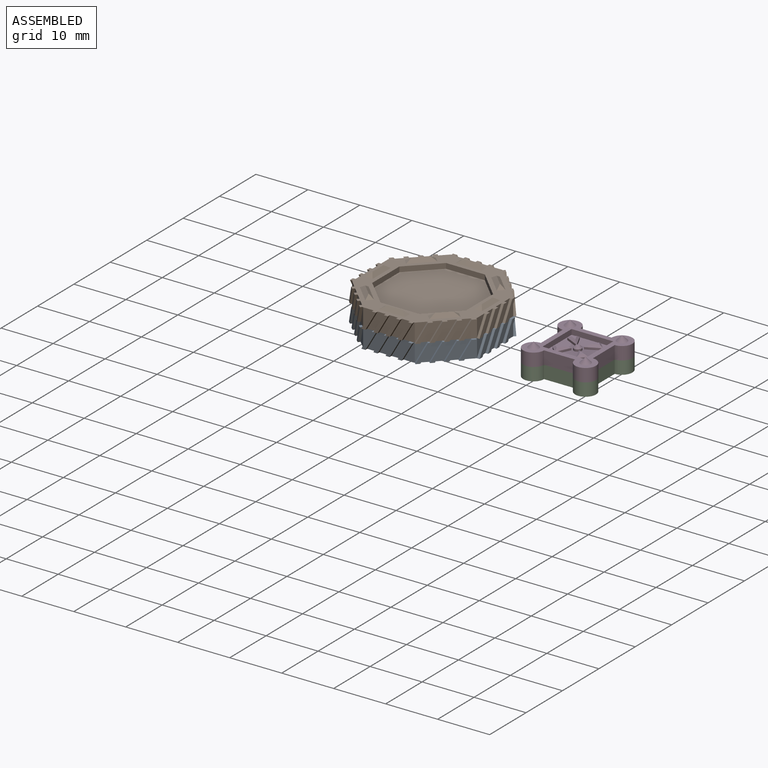
[diagram: assembled view]
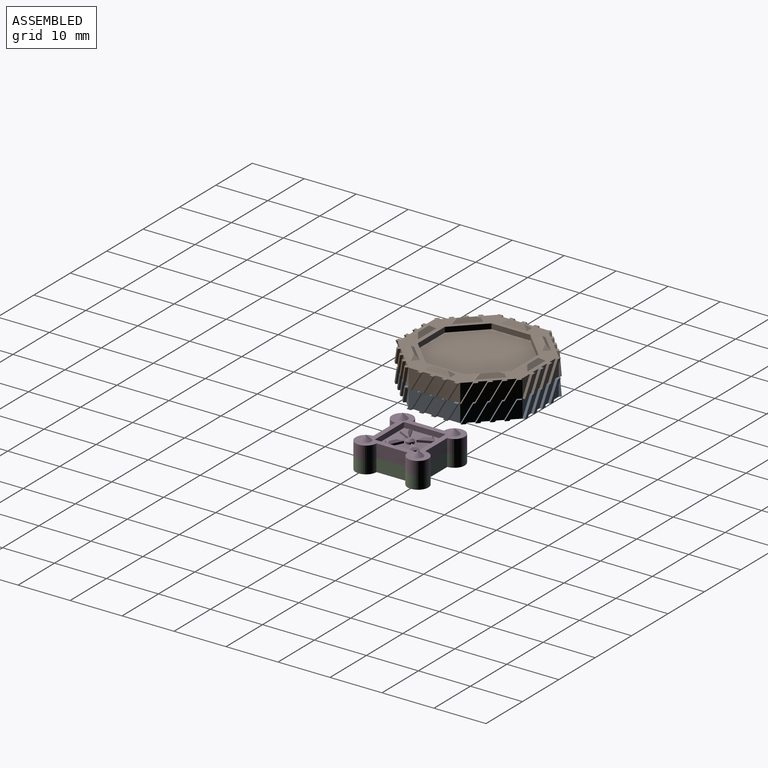
[diagram: assembled view, second angle]
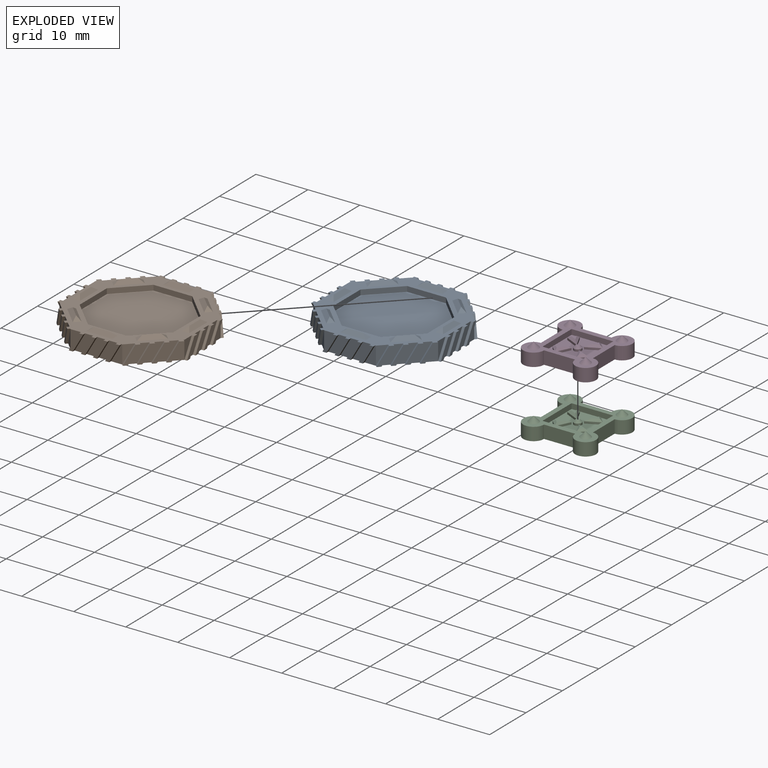
[diagram: exploded view]
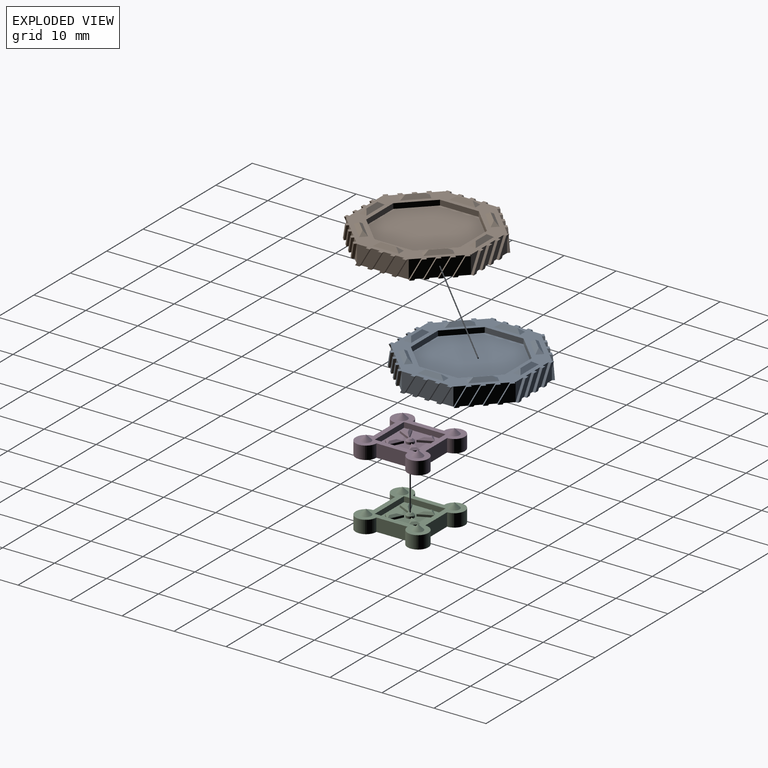
[diagram: exploded view, second angle]
ASSEMBLY  parts=4 mates=2
PART A: 211 faces, bbox 25x25x4.2 mm
  f0: plane 5x0.71mm, normal (0,-0.71,0.71), area 4mm2, adj f1,f2,f3,f4
  f1: plane 5.01x0.71mm, normal (0,0.71,0.71), area 4mm2, adj f0,f2,f3,f4
  f2: plane 1.41x1mm, normal (-0.58,0,0.82), area 0.8mm2, adj f0,f1,f4
  f3: plane 1.41x1mm, normal (0.58,0,0.82), area 0.8mm2, adj f0,f1,f4
  f4: plane 25.03x25.03mm, normal (0,0,1), area 165.8mm2, adj f0,f1,f2,f3,f5,f6,f7,f8
  f5: plane 3.54x3.54mm, normal (0.5,-0.5,0.71), area 4mm2, adj f4,f6,f7,f8
  f6: plane 3.54x3.54mm, normal (-0.5,0.5,0.71), area 4mm2, adj f4,f5,f7,f8
  f7: plane 1.2x1.2mm, normal (-0.41,-0.41,0.82), area 0.8mm2, adj f4,f5,f6
  f8: plane 1.2x1.2mm, normal (0.41,0.41,0.82), area 0.8mm2, adj f4,f5,f6
  f9: plane 5x0.71mm, normal (0.71,0,0.71), area 4mm2, adj f4,f10,f11,f12
  f10: plane 5.01x0.71mm, normal (-0.71,0,0.71), area 4mm2, adj f4,f9,f11,f12
  f11: plane 1.41x1mm, normal (0,-0.58,0.82), area 0.8mm2, adj f4,f9,f10
  f12: plane 1.41x1mm, normal (0,0.58,0.82), area 0.8mm2, adj f4,f9,f10
  f13: plane 3.54x3.54mm, normal (0.5,0.5,0.71), area 4mm2, adj f4,f14,f15,f16
  f14: plane 3.54x3.54mm, normal (-0.5,-0.5,0.71), area 4mm2, adj f4,f13,f15,f16
  f15: plane 1.2x1.2mm, normal (0.41,-0.41,0.82), area 0.8mm2, adj f4,f13,f14
  f16: plane 1.2x1.2mm, normal (-0.41,0.41,0.82), area 0.8mm2, adj f4,f13,f14
  f17: plane 5x0.71mm, normal (0,0.71,0.71), area 4mm2, adj f4,f18,f19,f20
  f18: plane 5.01x0.71mm, normal (0,-0.71,0.71), area 4mm2, adj f4,f17,f19,f20
  f19: plane 1.41x1mm, normal (0.58,0,0.82), area 0.8mm2, adj f4,f17,f18
  f20: plane 1.41x1mm, normal (-0.58,0,0.82), area 0.8mm2, adj f4,f17,f18
  f21: plane 3.54x3.54mm, normal (-0.5,0.5,0.71), area 4mm2, adj f4,f22,f23,f24
  f22: plane 3.54x3.54mm, normal (0.5,-0.5,0.71), area 4mm2, adj f4,f21,f23,f24
  f23: plane 1.2x1.2mm, normal (0.41,0.41,0.82), area 0.8mm2, adj f4,f21,f22
  f24: plane 1.2x1.2mm, normal (-0.41,-0.41,0.82), area 0.8mm2, adj f4,f21,f22
  f25: plane 5x0.71mm, normal (-0.71,0,0.71), area 4mm2, adj f4,f26,f27,f28
  f26: plane 5.01x0.71mm, normal (0.71,0,0.71), area 4mm2, adj f4,f25,f27,f28
  f27: plane 1.41x1mm, normal (0,0.58,0.82), area 0.8mm2, adj f4,f25,f26
  f28: plane 1.41x1mm, normal (0,-0.58,0.82), area 0.8mm2, adj f4,f25,f26
  f29: plane 3.54x3.54mm, normal (-0.5,-0.5,0.71), area 4mm2, adj f4,f30,f31,f32
  f30: plane 3.54x3.54mm, normal (0.5,0.5,0.71), area 4mm2, adj f4,f29,f31,f32
  f31: plane 1.2x1.2mm, normal (-0.41,0.41,0.82), area 0.8mm2, adj f4,f29,f30
  f32: plane 1.2x1.2mm, normal (0.41,-0.41,0.82), area 0.8mm2, adj f4,f29,f30
  f33: plane 25.03x25.03mm, normal (0,0,-1), area 423.1mm2, adj f34,f35,f36,f38,f39,f40,f41,f42
  f34: plane 3.5x2.02mm, normal (-0.87,0,-0.5), area 2mm2, adj f4,f33,f36,f38
  f35: plane 3.5x2.02mm, normal (0.87,0,0.5), area 2mm2, adj f4,f33,f36,f37
  f36: plane 3.5x2.82mm, normal (0,1,0), area 2.8mm2, adj f4,f33,f34,f35
  f37: plane 3.5x2.02mm, normal (0,1,0), area 3.5mm2, adj f4,f35,f169
  f38: plane 3.55x3.5mm, normal (0,1,0), area 5.4mm2, adj f4,f33,f34,f39
  f39: plane 3.5x2.02mm, normal (0.87,0,0.5), area 2mm2, adj f4,f33,f38,f41
  f40: plane 3.5x2.02mm, normal (-0.87,0,-0.5), area 2mm2, adj f4,f33,f41,f42
  f41: plane 3.5x2.82mm, normal (0,1,0), area 2.8mm2, adj f4,f33,f39,f40
  f42: plane 3.55x3.5mm, normal (0,1,0), area 5.4mm2, adj f4,f33,f40,f43
  f43: plane 3.5x2.02mm, normal (0.87,0,0.5), area 2mm2, adj f4,f33,f42,f45
  f44: plane 3.5x2.02mm, normal (-0.87,0,-0.5), area 2mm2, adj f4,f33,f45,f46
  f45: plane 3.5x2.82mm, normal (0,1,0), area 2.8mm2, adj f4,f33,f43,f44
  f46: plane 3.55x3.5mm, normal (0,1,0), area 5.4mm2, adj f4,f33,f44,f47
  f47: plane 3.5x2.02mm, normal (0.87,0,0.5), area 2mm2, adj f4,f33,f46,f49
  f48: plane 3.5x2.02mm, normal (-0.87,0,-0.5), area 2mm2, adj f4,f33,f49,f50
  f49: plane 3.5x2.82mm, normal (0,1,0), area 2.8mm2, adj f4,f33,f47,f48
  f50: plane 3.5x2.16mm, normal (0,1,0), area 4mm2, adj f4,f33,f48,f54
  f51: plane 3.5x1.78mm, normal (-0.61,-0.61,-0.5), area 2mm2, adj f4,f33,f53,f55
  f52: plane 3.5x1.78mm, normal (0.61,0.61,0.5), area 2mm2, adj f4,f33,f53,f54
  f53: plane 3.5x1.99mm, normal (-0.71,0.71,0), area 2.8mm2, adj f4,f33,f51,f52
  f54: plane 3.5x1.43mm, normal (-0.71,0.71,0), area 3.5mm2, adj f4,f50,f52
  f55: plane 3.5x2.51mm, normal (-0.71,0.71,0), area 5.4mm2, adj f4,f33,f51,f56
  f56: plane 3.5x1.78mm, normal (0.61,0.61,0.5), area 2mm2, adj f4,f33,f55,f58
  f57: plane 3.5x1.78mm, normal (-0.61,-0.61,-0.5), area 2mm2, adj f4,f33,f58,f59
  f58: plane 3.5x1.99mm, normal (-0.71,0.71,0), area 2.8mm2, adj f4,f33,f56,f57
  f59: plane 3.5x2.51mm, normal (-0.71,0.71,0), area 5.4mm2, adj f4,f33,f57,f60
  f60: plane 3.5x1.78mm, normal (0.61,0.61,0.5), area 2mm2, adj f4,f33,f59,f62
  f61: plane 3.5x1.78mm, normal (-0.61,-0.61,-0.5), area 2mm2, adj f4,f33,f62,f63
  f62: plane 3.5x1.99mm, normal (-0.71,0.71,0), area 2.8mm2, adj f4,f33,f60,f61
  f63: plane 3.5x2.51mm, normal (-0.71,0.71,0), area 5.4mm2, adj f4,f33,f61,f64
  f64: plane 3.5x1.78mm, normal (0.61,0.61,0.5), area 2mm2, adj f4,f33,f63,f66
  f65: plane 3.5x1.78mm, normal (-0.61,-0.61,-0.5), area 2mm2, adj f4,f33,f66,f67
  f66: plane 3.5x1.99mm, normal (-0.71,0.71,0), area 2.8mm2, adj f4,f33,f64,f65
  f67: plane 3.5x1.53mm, normal (-0.71,0.71,0), area 4mm2, adj f4,f33,f65,f71
  f68: plane 3.5x2.02mm, normal (0,-0.87,-0.5), area 2mm2, adj f4,f33,f70,f72
  f69: plane 3.5x2.02mm, normal (0,0.87,0.5), area 2mm2, adj f4,f33,f70,f71
  f70: plane 3.5x2.82mm, normal (-1,0,0), area 2.8mm2, adj f4,f33,f68,f69
  f71: plane 3.5x2.02mm, normal (-1,0,0), area 3.5mm2, adj f4,f67,f69
  f72: plane 3.55x3.5mm, normal (-1,0,0), area 5.4mm2, adj f4,f33,f68,f73
  f73: plane 3.5x2.02mm, normal (0,0.87,0.5), area 2mm2, adj f4,f33,f72,f75
  f74: plane 3.5x2.02mm, normal (0,-0.87,-0.5), area 2mm2, adj f4,f33,f75,f76
  f75: plane 3.5x2.82mm, normal (-1,0,0), area 2.8mm2, adj f4,f33,f73,f74
  f76: plane 3.55x3.5mm, normal (-1,0,0), area 5.4mm2, adj f4,f33,f74,f77
  f77: plane 3.5x2.02mm, normal (0,0.87,0.5), area 2mm2, adj f4,f33,f76,f79
  f78: plane 3.5x2.02mm, normal (0,-0.87,-0.5), area 2mm2, adj f4,f33,f79,f80
  f79: plane 3.5x2.82mm, normal (-1,0,0), area 2.8mm2, adj f4,f33,f77,f78
  f80: plane 3.55x3.5mm, normal (-1,0,0), area 5.4mm2, adj f4,f33,f78,f81
  f81: plane 3.5x2.02mm, normal (0,0.87,0.5), area 2mm2, adj f4,f33,f80,f83
  f82: plane 3.5x2.02mm, normal (0,-0.87,-0.5), area 2mm2, adj f4,f33,f83,f84
  f83: plane 3.5x2.82mm, normal (-1,0,0), area 2.8mm2, adj f4,f33,f81,f82
  f84: plane 3.5x2.16mm, normal (-1,0,0), area 4mm2, adj f4,f33,f82,f88
  f85: plane 3.5x1.78mm, normal (0.61,-0.61,-0.5), area 2mm2, adj f4,f33,f87,f89
  f86: plane 3.5x1.78mm, normal (-0.61,0.61,0.5), area 2mm2, adj f4,f33,f87,f88
  f87: plane 3.5x1.99mm, normal (-0.71,-0.71,0), area 2.8mm2, adj f4,f33,f85,f86
  f88: plane 3.5x1.43mm, normal (-0.71,-0.71,0), area 3.5mm2, adj f4,f84,f86
  f89: plane 3.5x2.51mm, normal (-0.71,-0.71,0), area 5.4mm2, adj f4,f33,f85,f90
  f90: plane 3.5x1.78mm, normal (-0.61,0.61,0.5), area 2mm2, adj f4,f33,f89,f92
  f91: plane 3.5x1.78mm, normal (0.61,-0.61,-0.5), area 2mm2, adj f4,f33,f92,f93
  f92: plane 3.5x1.99mm, normal (-0.71,-0.71,0), area 2.8mm2, adj f4,f33,f90,f91
  f93: plane 3.5x2.51mm, normal (-0.71,-0.71,0), area 5.4mm2, adj f4,f33,f91,f94
  f94: plane 3.5x1.78mm, normal (-0.61,0.61,0.5), area 2mm2, adj f4,f33,f93,f96
  f95: plane 3.5x1.78mm, normal (0.61,-0.61,-0.5), area 2mm2, adj f4,f33,f96,f97
  f96: plane 3.5x1.99mm, normal (-0.71,-0.71,0), area 2.8mm2, adj f4,f33,f94,f95
  f97: plane 3.5x2.51mm, normal (-0.71,-0.71,0), area 5.4mm2, adj f4,f33,f95,f98
  f98: plane 3.5x1.78mm, normal (-0.61,0.61,0.5), area 2mm2, adj f4,f33,f97,f100
  f99: plane 3.5x1.78mm, normal (0.61,-0.61,-0.5), area 2mm2, adj f4,f33,f100,f101
  f100: plane 3.5x1.99mm, normal (-0.71,-0.71,0), area 2.8mm2, adj f4,f33,f98,f99
  f101: plane 3.5x1.53mm, normal (-0.71,-0.71,0), area 4mm2, adj f4,f33,f99,f105
  f102: plane 3.5x2.02mm, normal (0.87,0,-0.5), area 2mm2, adj f4,f33,f104,f106
  f103: plane 3.5x2.02mm, normal (-0.87,0,0.5), area 2mm2, adj f4,f33,f104,f105
  f104: plane 3.5x2.82mm, normal (0,-1,0), area 2.8mm2, adj f4,f33,f102,f103
  f105: plane 3.5x2.02mm, normal (0,-1,0), area 3.5mm2, adj f4,f101,f103
  f106: plane 3.55x3.5mm, normal (0,-1,0), area 5.4mm2, adj f4,f33,f102,f107
  f107: plane 3.5x2.02mm, normal (-0.87,0,0.5), area 2mm2, adj f4,f33,f106,f109
  f108: plane 3.5x2.02mm, normal (0.87,0,-0.5), area 2mm2, adj f4,f33,f109,f110
  f109: plane 3.5x2.82mm, normal (0,-1,0), area 2.8mm2, adj f4,f33,f107,f108
  f110: plane 3.55x3.5mm, normal (0,-1,0), area 5.4mm2, adj f4,f33,f108,f111
  f111: plane 3.5x2.02mm, normal (-0.87,0,0.5), area 2mm2, adj f4,f33,f110,f113
  f112: plane 3.5x2.02mm, normal (0.87,0,-0.5), area 2mm2, adj f4,f33,f113,f114
  f113: plane 3.5x2.82mm, normal (0,-1,0), area 2.8mm2, adj f4,f33,f111,f112
  f114: plane 3.55x3.5mm, normal (0,-1,0), area 5.4mm2, adj f4,f33,f112,f115
  f115: plane 3.5x2.02mm, normal (-0.87,0,0.5), area 2mm2, adj f4,f33,f114,f117
  f116: plane 3.5x2.02mm, normal (0.87,0,-0.5), area 2mm2, adj f4,f33,f117,f118
  f117: plane 3.5x2.82mm, normal (0,-1,0), area 2.8mm2, adj f4,f33,f115,f116
  f118: plane 3.5x2.16mm, normal (0,-1,0), area 4mm2, adj f4,f33,f116,f122
  f119: plane 3.5x1.78mm, normal (0.61,0.61,-0.5), area 2mm2, adj f4,f33,f121,f123
  f120: plane 3.5x1.78mm, normal (-0.61,-0.61,0.5), area 2mm2, adj f4,f33,f121,f122
  f121: plane 3.5x1.99mm, normal (0.71,-0.71,0), area 2.8mm2, adj f4,f33,f119,f120
  f122: plane 3.5x1.43mm, normal (0.71,-0.71,0), area 3.5mm2, adj f4,f118,f120
  f123: plane 3.5x2.51mm, normal (0.71,-0.71,0), area 5.4mm2, adj f4,f33,f119,f124
  f124: plane 3.5x1.78mm, normal (-0.61,-0.61,0.5), area 2mm2, adj f4,f33,f123,f126
  f125: plane 3.5x1.78mm, normal (0.61,0.61,-0.5), area 2mm2, adj f4,f33,f126,f127
  f126: plane 3.5x1.99mm, normal (0.71,-0.71,0), area 2.8mm2, adj f4,f33,f124,f125
  f127: plane 3.5x2.51mm, normal (0.71,-0.71,0), area 5.4mm2, adj f4,f33,f125,f128
  f128: plane 3.5x1.78mm, normal (-0.61,-0.61,0.5), area 2mm2, adj f4,f33,f127,f130
  f129: plane 3.5x1.78mm, normal (0.61,0.61,-0.5), area 2mm2, adj f4,f33,f130,f131
  f130: plane 3.5x1.99mm, normal (0.71,-0.71,0), area 2.8mm2, adj f4,f33,f128,f129
  f131: plane 3.5x2.51mm, normal (0.71,-0.71,0), area 5.4mm2, adj f4,f33,f129,f132
  f132: plane 3.5x1.78mm, normal (-0.61,-0.61,0.5), area 2mm2, adj f4,f33,f131,f134
  f133: plane 3.5x1.78mm, normal (0.61,0.61,-0.5), area 2mm2, adj f4,f33,f134,f135
  f134: plane 3.5x1.99mm, normal (0.71,-0.71,0), area 2.8mm2, adj f4,f33,f132,f133
  f135: plane 3.5x1.53mm, normal (0.71,-0.71,0), area 4mm2, adj f4,f33,f133,f139
  f136: plane 3.5x2.02mm, normal (0,0.87,-0.5), area 2mm2, adj f4,f33,f138,f140
  f137: plane 3.5x2.02mm, normal (0,-0.87,0.5), area 2mm2, adj f4,f33,f138,f139
  f138: plane 3.5x2.82mm, normal (1,0,0), area 2.8mm2, adj f4,f33,f136,f137
  f139: plane 3.5x2.02mm, normal (1,0,0), area 3.5mm2, adj f4,f135,f137
  f140: plane 3.55x3.5mm, normal (1,0,0), area 5.4mm2, adj f4,f33,f136,f141
  f141: plane 3.5x2.02mm, normal (0,-0.87,0.5), area 2mm2, adj f4,f33,f140,f143
  f142: plane 3.5x2.02mm, normal (0,0.87,-0.5), area 2mm2, adj f4,f33,f143,f144
  f143: plane 3.5x2.82mm, normal (1,0,0), area 2.8mm2, adj f4,f33,f141,f142
  f144: plane 3.55x3.5mm, normal (1,0,0), area 5.4mm2, adj f4,f33,f142,f145
  f145: plane 3.5x2.02mm, normal (0,-0.87,0.5), area 2mm2, adj f4,f33,f144,f147
  f146: plane 3.5x2.02mm, normal (0,0.87,-0.5), area 2mm2, adj f4,f33,f147,f148
  f147: plane 3.5x2.82mm, normal (1,0,0), area 2.8mm2, adj f4,f33,f145,f146
  f148: plane 3.55x3.5mm, normal (1,0,0), area 5.4mm2, adj f4,f33,f146,f149
  f149: plane 3.5x2.02mm, normal (0,-0.87,0.5), area 2mm2, adj f4,f33,f148,f151
  f150: plane 3.5x2.02mm, normal (0,0.87,-0.5), area 2mm2, adj f4,f33,f151,f152
  f151: plane 3.5x2.82mm, normal (1,0,0), area 2.8mm2, adj f4,f33,f149,f150
  f152: plane 3.5x2.16mm, normal (1,0,0), area 4mm2, adj f4,f33,f150,f156
  f153: plane 3.5x1.78mm, normal (-0.61,0.61,-0.5), area 2mm2, adj f4,f33,f155,f157
  f154: plane 3.5x1.78mm, normal (0.61,-0.61,0.5), area 2mm2, adj f4,f33,f155,f156
  f155: plane 3.5x1.99mm, normal (0.71,0.71,0), area 2.8mm2, adj f4,f33,f153,f154
  f156: plane 3.5x1.43mm, normal (0.71,0.71,0), area 3.5mm2, adj f4,f152,f154
  f157: plane 3.5x2.51mm, normal (0.71,0.71,0), area 5.4mm2, adj f4,f33,f153,f158
  f158: plane 3.5x1.78mm, normal (0.61,-0.61,0.5), area 2mm2, adj f4,f33,f157,f160
  f159: plane 3.5x1.78mm, normal (-0.61,0.61,-0.5), area 2mm2, adj f4,f33,f160,f161
  f160: plane 3.5x1.99mm, normal (0.71,0.71,0), area 2.8mm2, adj f4,f33,f158,f159
  f161: plane 3.5x2.51mm, normal (0.71,0.71,0), area 5.4mm2, adj f4,f33,f159,f162
  f162: plane 3.5x1.78mm, normal (0.61,-0.61,0.5), area 2mm2, adj f4,f33,f161,f164
  f163: plane 3.5x1.78mm, normal (-0.61,0.61,-0.5), area 2mm2, adj f4,f33,f164,f165
  f164: plane 3.5x1.99mm, normal (0.71,0.71,0), area 2.8mm2, adj f4,f33,f162,f163
  f165: plane 3.5x2.51mm, normal (0.71,0.71,0), area 5.4mm2, adj f4,f33,f163,f166
  f166: plane 3.5x1.78mm, normal (0.61,-0.61,0.5), area 2mm2, adj f4,f33,f165,f168
  f167: plane 3.5x1.78mm, normal (-0.61,0.61,-0.5), area 2mm2, adj f4,f33,f168,f169
  f168: plane 3.5x1.99mm, normal (0.71,0.71,0), area 2.8mm2, adj f4,f33,f166,f167
  f169: plane 3.5x1.53mm, normal (0.71,0.71,0), area 4mm2, adj f4,f33,f37,f167
  f170: plane 7.46x1mm, normal (0,-1,0), area 7.5mm2, adj f4,f171,f177,f178
  f171: plane 5.28x5.28mm, normal (-0.71,-0.71,0), area 7.5mm2, adj f4,f170,f172,f178
  f172: plane 7.46x1mm, normal (-1,0,0), area 7.5mm2, adj f4,f171,f173,f178
  f173: plane 5.28x5.28mm, normal (-0.71,0.71,0), area 7.5mm2, adj f4,f172,f174,f178
  f174: plane 7.46x1mm, normal (0,1,0), area 7.5mm2, adj f4,f173,f175,f178
  f175: plane 5.28x5.28mm, normal (0.71,0.71,0), area 7.5mm2, adj f4,f174,f176,f178
  f176: plane 7.46x1mm, normal (1,0,0), area 7.5mm2, adj f4,f175,f177,f178
  f177: plane 5.28x5.28mm, normal (0.71,-0.71,0), area 7.5mm2, adj f4,f170,f176,f178
  f178: plane 18.02x18.02mm, normal (0,0,1), area 269mm2, adj f170,f171,f172,f173,f174,f175,f176,f177
  f179: plane 5.51x0.78mm, normal (0,0.71,-0.71), area 4.8mm2, adj f33,f180,f181,f182
  f180: plane 5.51x0.78mm, normal (0,-0.71,-0.71), area 4.8mm2, adj f33,f179,f181,f182
  f181: plane 1.55x1.1mm, normal (0.58,0,-0.82), area 1mm2, adj f33,f179,f180
  f182: plane 1.55x1.1mm, normal (-0.58,0,-0.82), area 1mm2, adj f33,f179,f180
  f183: plane 3.9x3.9mm, normal (-0.5,0.5,-0.71), area 4.8mm2, adj f33,f184,f185,f186
  f184: plane 3.9x3.9mm, normal (0.5,-0.5,-0.71), area 4.8mm2, adj f33,f183,f185,f186
  f185: plane 1.32x1.32mm, normal (0.41,0.41,-0.82), area 1mm2, adj f33,f183,f184
  f186: plane 1.32x1.32mm, normal (-0.41,-0.41,-0.82), area 1mm2, adj f33,f183,f184
  f187: plane 3.9x3.9mm, normal (0.5,0.5,-0.71), area 4.8mm2, adj f33,f188,f189,f190
  f188: plane 3.9x3.9mm, normal (-0.5,-0.5,-0.71), area 4.8mm2, adj f33,f187,f189,f190
  f189: plane 1.32x1.32mm, normal (0.41,-0.41,-0.82), area 1mm2, adj f33,f187,f188
  f190: plane 1.32x1.32mm, normal (-0.41,0.41,-0.82), area 1mm2, adj f33,f187,f188
  f191: plane 5.51x0.78mm, normal (-0.71,0,-0.71), area 4.8mm2, adj f33,f192,f193,f194
  f192: plane 5.51x0.78mm, normal (0.71,0,-0.71), area 4.8mm2, adj f33,f191,f193,f194
  f193: plane 1.55x1.1mm, normal (0,0.58,-0.82), area 1mm2, adj f33,f191,f192
  f194: plane 1.55x1.1mm, normal (0,-0.58,-0.82), area 1mm2, adj f33,f191,f192
  f195: plane 5.51x0.78mm, normal (0.71,0,-0.71), area 4.8mm2, adj f33,f196,f197,f198
  f196: plane 5.51x0.78mm, normal (-0.71,0,-0.71), area 4.8mm2, adj f33,f195,f197,f198
  f197: plane 1.55x1.1mm, normal (0,-0.58,-0.82), area 1mm2, adj f33,f195,f196
  f198: plane 1.55x1.1mm, normal (0,0.58,-0.82), area 1mm2, adj f33,f195,f196
  f199: plane 5.51x0.78mm, normal (0,-0.71,-0.71), area 4.8mm2, adj f33,f200,f201,f202
  f200: plane 5.51x0.78mm, normal (0,0.71,-0.71), area 4.8mm2, adj f33,f199,f201,f202
  f201: plane 1.55x1.1mm, normal (-0.58,0,-0.82), area 1mm2, adj f33,f199,f200
  f202: plane 1.55x1.1mm, normal (0.58,0,-0.82), area 1mm2, adj f33,f199,f200
  f203: plane 3.9x3.9mm, normal (-0.5,-0.5,-0.71), area 4.8mm2, adj f33,f204,f205,f206
  f204: plane 3.9x3.9mm, normal (0.5,0.5,-0.71), area 4.8mm2, adj f33,f203,f205,f206
  f205: plane 1.32x1.32mm, normal (-0.41,0.41,-0.82), area 1mm2, adj f33,f203,f204
  f206: plane 1.32x1.32mm, normal (0.41,-0.41,-0.82), area 1mm2, adj f33,f203,f204
  f207: plane 3.9x3.9mm, normal (0.5,-0.5,-0.71), area 4.8mm2, adj f33,f208,f209,f210
  f208: plane 3.9x3.9mm, normal (-0.5,0.5,-0.71), area 4.8mm2, adj f33,f207,f209,f210
  f209: plane 1.32x1.32mm, normal (-0.41,-0.41,-0.82), area 1mm2, adj f33,f207,f208
  f210: plane 1.32x1.32mm, normal (0.41,0.41,-0.82), area 1mm2, adj f33,f207,f208
PART B: same geometry as A
PART C: 54 faces, bbox 14x14x3.5 mm
  f0: plane 6x2.5mm, normal (1,0,0), area 15mm2, adj f1,f7,f8,f9
  f1: cylinder r=2mm len=4mm, axis (0,0,1), area 23.6mm2, adj f0,f2,f8,f9
  f2: plane 6x2.5mm, normal (0,1,0), area 15mm2, adj f1,f3,f8,f9
  f3: cylinder r=2mm len=4mm, axis (0,0,1), area 23.6mm2, adj f2,f4,f8,f9
  f4: plane 6x2.5mm, normal (-1,0,0), area 15mm2, adj f3,f5,f8,f9
  f5: cylinder r=2mm len=4mm, axis (0,0,1), area 23.6mm2, adj f4,f6,f8,f9
  f6: plane 6x2.5mm, normal (0,-1,0), area 15mm2, adj f5,f7,f8,f9
  f7: cylinder r=2mm len=4mm, axis (0,0,1), area 23.6mm2, adj f0,f6,f8,f9
  f8: plane 14x14mm, normal (0,0,-1), area 122.5mm2, adj f0,f1,f2,f3,f4,f5,f6,f7
  f9: plane 14x14mm, normal (0,0,1), area 61.2mm2, adj f0,f1,f2,f3,f4,f5,f6,f7
  f10: plane 8x1mm, normal (0,-1,0), area 8mm2, adj f9,f11,f13,f14
  f11: plane 8x1mm, normal (1,0,0), area 8mm2, adj f9,f10,f12,f14
  f12: plane 8x1mm, normal (0,1,0), area 8mm2, adj f9,f11,f13,f14
  f13: plane 8x1mm, normal (-1,0,0), area 8mm2, adj f9,f10,f12,f14
  f14: plane 8x8mm, normal (0,0,1), area 50.8mm2, adj f10,f11,f12,f13,f23,f25,f26,f27
  f15: cone r=1.1mm half-angle=45deg, axis (0,0,-1), area 5.4mm2, adj f8
  f16: cone r=1.1mm half-angle=45deg, axis (0,0,-1), area 5.4mm2, adj f8
  f17: cone r=1.1mm half-angle=45deg, axis (0,0,-1), area 5.4mm2, adj f8
  f18: cone r=1.1mm half-angle=45deg, axis (0,0,-1), area 5.4mm2, adj f8
  f19: cone r=1mm half-angle=45deg, axis (0,0,-1), area 4.4mm2, adj f9
  f20: cone r=1mm half-angle=45deg, axis (0,0,-1), area 4.4mm2, adj f9
  f21: cone r=1mm half-angle=45deg, axis (0,0,-1), area 4.4mm2, adj f9
  f22: cone r=1mm half-angle=45deg, axis (0,0,-1), area 4.4mm2, adj f9
  f23: cylinder r=0.75mm len=1.5mm, axis (0,0,-1), area 1.9mm2, adj f14,f47
  f24: plane 0.7x0.7mm, normal (0,0,1), area 0.4mm2, adj f47
  f25: plane 2.73x1.31mm, normal (-0.9,0.43,0), area 1.2mm2, adj f14,f26,f27,f48
  f26: plane 2.73x1.31mm, normal (0.43,-0.9,0), area 1.2mm2, adj f14,f25,f27,f50
  f27: plane 1.41x1.41mm, normal (0.71,0.71,0), area 0.8mm2, adj f14,f25,f26,f49
  f28: plane 1.19x1.19mm, normal (0,0,1), area 0.5mm2, adj f48,f49,f50
  f29: plane 2.73x1.31mm, normal (0.43,0.9,0), area 1.2mm2, adj f14,f30,f31,f44
  f30: plane 2.73x1.31mm, normal (-0.9,-0.43,0), area 1.2mm2, adj f14,f29,f31,f46
  f31: plane 1.41x1.41mm, normal (0.71,-0.71,0), area 0.8mm2, adj f14,f29,f30,f45
  f32: plane 1.19x1.19mm, normal (0,0,1), area 0.5mm2, adj f44,f45,f46
  f33: plane 2.73x1.31mm, normal (0.9,-0.43,0), area 1.2mm2, adj f14,f34,f35,f41
  f34: plane 2.73x1.31mm, normal (-0.43,0.9,0), area 1.2mm2, adj f14,f33,f35,f43
  f35: plane 1.41x1.41mm, normal (-0.71,-0.71,0), area 0.8mm2, adj f14,f33,f34,f42
  f36: plane 1.19x1.19mm, normal (0,0,1), area 0.5mm2, adj f41,f42,f43
  f37: plane 2.73x1.31mm, normal (-0.43,-0.9,0), area 1.2mm2, adj f14,f38,f39,f51
  f38: plane 2.73x1.31mm, normal (0.9,0.43,0), area 1.2mm2, adj f14,f37,f39,f53
  f39: plane 1.41x1.41mm, normal (-0.71,0.71,0), area 0.8mm2, adj f14,f37,f38,f52
  f40: plane 1.19x1.19mm, normal (0,0,1), area 0.5mm2, adj f51,f52,f53
  f41: plane 2.73x1.43mm, normal (0.64,-0.31,0.71), area 1.2mm2, adj f33,f36,f42,f43
  f42: plane 1.41x1.41mm, normal (-0.5,-0.5,0.71), area 0.8mm2, adj f35,f36,f41,f43
  f43: plane 2.73x1.43mm, normal (-0.31,0.64,0.71), area 1.2mm2, adj f34,f36,f41,f42
  f44: plane 2.73x1.43mm, normal (0.31,0.64,0.71), area 1.2mm2, adj f29,f32,f45,f46
  f45: plane 1.41x1.41mm, normal (0.5,-0.5,0.71), area 0.8mm2, adj f31,f32,f44,f46
  f46: plane 2.73x1.43mm, normal (-0.64,-0.31,0.71), area 1.2mm2, adj f30,f32,f44,f45
  f47: cone r=0.35mm half-angle=45deg, axis (0,0,-1), area 2mm2, adj f23,f24
  f48: plane 2.73x1.43mm, normal (-0.64,0.31,0.71), area 1.2mm2, adj f25,f28,f49,f50
  f49: plane 1.41x1.41mm, normal (0.5,0.5,0.71), area 0.8mm2, adj f27,f28,f48,f50
  f50: plane 2.73x1.43mm, normal (0.31,-0.64,0.71), area 1.2mm2, adj f26,f28,f48,f49
  f51: plane 2.73x1.43mm, normal (-0.31,-0.64,0.71), area 1.2mm2, adj f37,f40,f52,f53
  f52: plane 1.41x1.41mm, normal (-0.5,0.5,0.71), area 0.8mm2, adj f39,f40,f51,f53
  f53: plane 2.73x1.43mm, normal (0.64,0.31,0.71), area 1.2mm2, adj f38,f40,f51,f52
PART D: same geometry as C
PLACE A t=(-7.13,-5.5,-1.94)mm
PLACE B t=(-7.13,-5.5,1.56)mm
PLACE C t=(17.75,-1.15,-4.58)mm
PLACE D t=(17.75,-1.15,-2.08)mm
MATE fastened D.f8 <-> C.f9  axis (0,0,1) through (14.75,-6.15,-4.58)mm
MATE fastened A.f156 <-> B.f156  axis (0.71,0.71,0) through (4.88,-0.53,-0.94)mm
